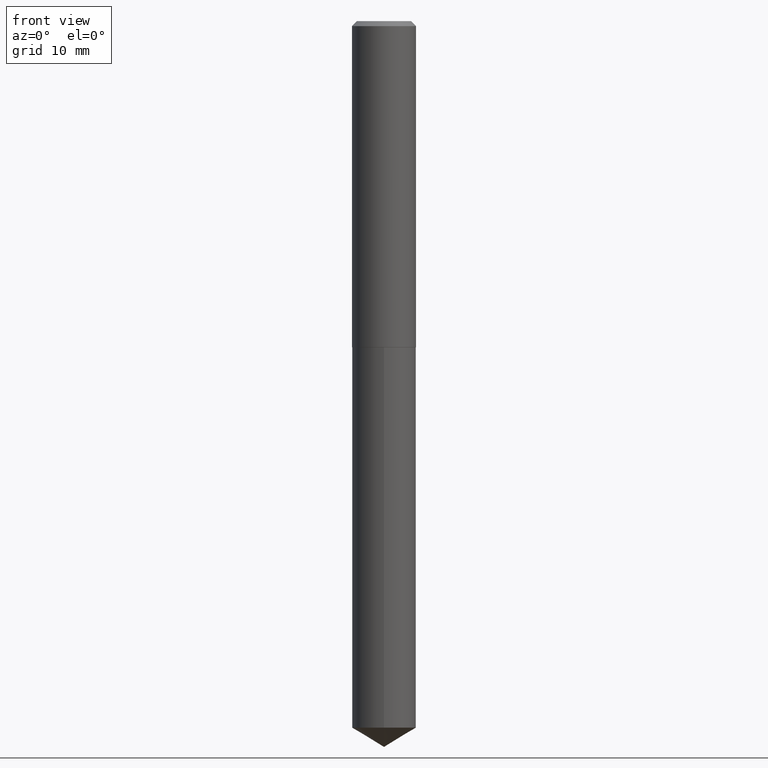
[diagram: clean part render]
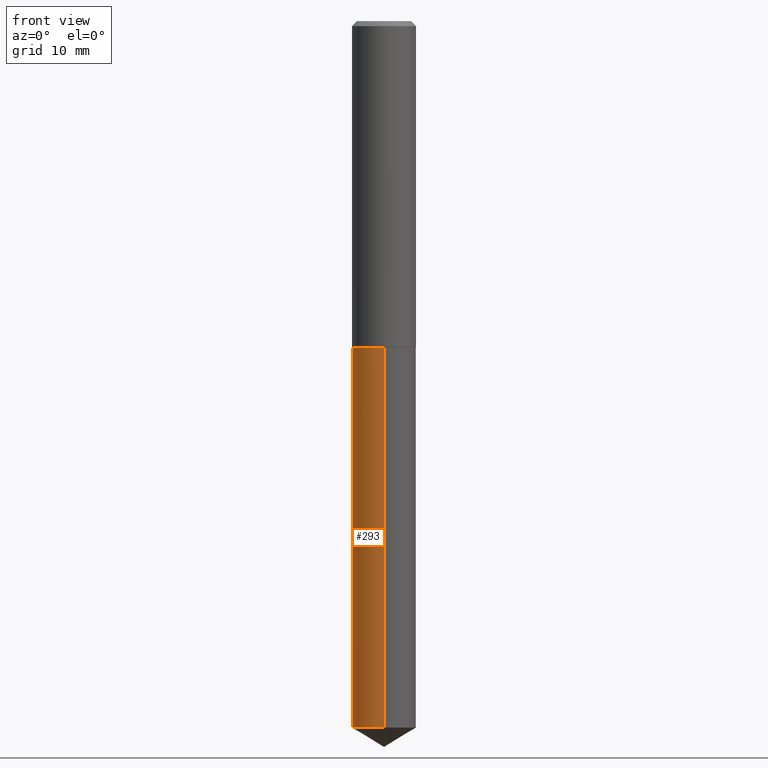
[diagram: same view with one face highlighted and labeled with its STEP entity id]
A machine part, front view. The second image highlights one B-rep face of the part: STEP entity #293.
In plain terms, the highlighted cylindrical surface (edge-blend (fillet) strip) has radius 5.0419 mm, axis along (-0, 0, 1).
Its self-contained STEP definition (entity closure, byte-faithful):
#9 = DIRECTION ( 'NONE',  ( -2.445426262625076269E-29, 3.491542263642580928E-15, 1.000000000000000000 ) ) ;
#11 = CARTESIAN_POINT ( 'NONE',  ( 4.944737926106347490E-29, -7.059775267140842055E-15, -2.022000000000000242 ) ) ;
#16 = VERTEX_POINT ( 'NONE', #118 ) ;
#28 = VERTEX_POINT ( 'NONE', #331 ) ;
#30 = DIRECTION ( 'NONE',  ( -2.445426262625076269E-29, 3.491542263642581322E-15, 1.000000000000000000 ) ) ;
#36 = LINE ( 'NONE', #127, #37 ) ;
#37 = VECTOR ( 'NONE', #30, 39.37007874015748143 ) ;
#42 = CYLINDRICAL_SURFACE ( 'NONE', #201, 0.1985000000000000098 ) ;
#49 = DIRECTION ( 'NONE',  ( -6.982962677686265922E-15, -1.000000000000000000, 4.128737521910725011E-15 ) ) ;
#59 = ORIENTED_EDGE ( 'NONE', *, *, #79, .F. ) ;
#60 = AXIS2_PLACEMENT_3D ( 'NONE', #74, #328, #49 ) ;
#71 = FACE_OUTER_BOUND ( 'NONE', #212, .T. ) ;
#74 = CARTESIAN_POINT ( 'NONE',  ( 4.944737926106347490E-29, -7.059775267140842055E-15, -2.022000000000000242 ) ) ;
#77 = CIRCLE ( 'NONE', #128, 0.1985000000000000098 ) ;
#79 = EDGE_CURVE ( 'NONE', #170, #28, #296, .T. ) ;
#80 = DIRECTION ( 'NONE',  ( -2.445426262625076269E-29, 3.491542263642581322E-15, 1.000000000000000000 ) ) ;
#84 = VECTOR ( 'NONE', #80, 39.37007874015748143 ) ;
#96 = VERTEX_POINT ( 'NONE', #323 ) ;
#97 = CARTESIAN_POINT ( 'NONE',  ( 1.410427330483906421E-15, 0.1984999999999929321, -2.022000000000001130 ) ) ;
#104 = ORIENTED_EDGE ( 'NONE', *, *, #119, .T. ) ;
#118 = CARTESIAN_POINT ( 'NONE',  ( 1.410427330483905632E-15, 0.1984999999999846887, -4.380729167123031509 ) ) ;
#119 = EDGE_CURVE ( 'NONE', #96, #28, #36, .T. ) ;
#126 = EDGE_CURVE ( 'NONE', #16, #96, #77, .T. ) ;
#127 = CARTESIAN_POINT ( 'NONE',  ( -1.386118091520674425E-15, -0.1985000000000070874, -2.021999999999999797 ) ) ;
#128 = AXIS2_PLACEMENT_3D ( 'NONE', #333, #244, #337 ) ;
#170 = VERTEX_POINT ( 'NONE', #97 ) ;
#201 = AXIS2_PLACEMENT_3D ( 'NONE', #11, #9, #374 ) ;
#212 = EDGE_LOOP ( 'NONE', ( #319, #373, #104, #59 ) ) ;
#244 = DIRECTION ( 'NONE',  ( -2.445426262625076269E-29, 3.491542263642580928E-15, 1.000000000000000000 ) ) ;
#293 = ADVANCED_FACE ( 'NONE', ( #71 ), #42, .T. ) ;
#296 = CIRCLE ( 'NONE', #60, 0.1985000000000000098 ) ;
#313 = EDGE_CURVE ( 'NONE', #16, #170, #320, .T. ) ;
#319 = ORIENTED_EDGE ( 'NONE', *, *, #313, .F. ) ;
#320 = LINE ( 'NONE', #345, #84 ) ;
#323 = CARTESIAN_POINT ( 'NONE',  ( -1.386118091520616444E-15, -0.1985000000000152753, -4.380729167123029733 ) ) ;
#328 = DIRECTION ( 'NONE',  ( -2.445426262625076269E-29, 3.491542263642580928E-15, 1.000000000000000000 ) ) ;
#331 = CARTESIAN_POINT ( 'NONE',  ( -1.386118091520674425E-15, -0.1985000000000070874, -2.021999999999999797 ) ) ;
#333 = CARTESIAN_POINT ( 'NONE',  ( 1.071283617780877760E-28, -1.529537784263736795E-14, -4.380729167123030621 ) ) ;
#337 = DIRECTION ( 'NONE',  ( -6.982962677686265922E-15, -1.000000000000000000, 2.752491681273816674E-15 ) ) ;
#345 = CARTESIAN_POINT ( 'NONE',  ( 1.410427330483848242E-15, 0.1984999999999929321, -2.022000000000001130 ) ) ;
#373 = ORIENTED_EDGE ( 'NONE', *, *, #126, .T. ) ;
#374 = DIRECTION ( 'NONE',  ( -6.982962677686265922E-15, -1.000000000000000000, 4.128737521910725011E-15 ) ) ;